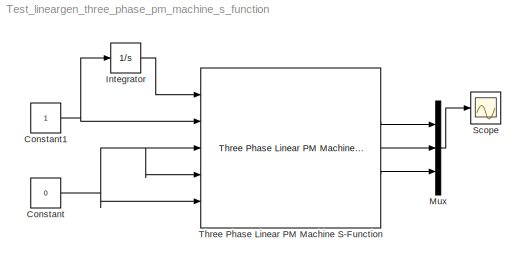
MODEL Test_lineargen_three_phase_pm_machine_s_function
KIND model
BLOCK [Constant] Constant
  SID = 2
  Value = 0
BLOCK [Constant] Constant1
  SID = 3
BLOCK [Integrator] Integrator
  Ports = [1, 1]
  SID = 4
BLOCK [Mux] Mux
  DisplayOption = bar
  Inputs = 3
  Ports = [3, 1]
  SID = 9
BLOCK [Scope] Scope
  NumInputPorts = 1
  Ports = [1]
  SID = 5
  ScopeSpecificationString = C++SS(StrPVP('Location','[155, 354, 658, 785]'),StrPVP('Open','off'),MxPVP('AxesTitles',24,'struct(''axes1'',''%<SignalLabel>'')'),StrPVP('DataFormat','StructureWithTime'),StrPVP('BlockParamSampleTime','0'),StrPVP('LimitDataPoints','on'),StrPVP('Decimation','1'),StrPVP('BlockParamSampleInput','off'))
BLOCK [Reference] Three Phase Linear PM Machine S-Function  REF=pm_machines_library/Three Phase Linear PM Machine S-Function  (lib defined in slx_81e85edba9f0)
  Ports = [5, 5]
  SID = 8
  SourceBlock = pm_machines_library/Three Phase Linear PM Machine S-Function
  design_data_type_popup = From File
  design_workspace_edit = []
  file_name_edit = test_lineargen_pm_machine_s_function.mat
  simoptions_workspace_edit = []
NET Constant1:1 -> Integrator:1, Three Phase Linear PM Machine S-Function:2
NET Constant:1 -> Three Phase Linear PM Machine S-Function:3, Three Phase Linear PM Machine S-Function:4, Three Phase Linear PM Machine S-Function:5
LINE Integrator:1 -> Three Phase Linear PM Machine S-Function:1
LINE Mux:1 -> Scope:1
LINE Three Phase Linear PM Machine S-Function:2 -> Mux:1
LINE Three Phase Linear PM Machine S-Function:3 -> Mux:2
LINE Three Phase Linear PM Machine S-Function:4 -> Mux:3
note: NET lines group one-source signal fan-out (src -> all destinations, sorted); 1:1 wires keep LINE
